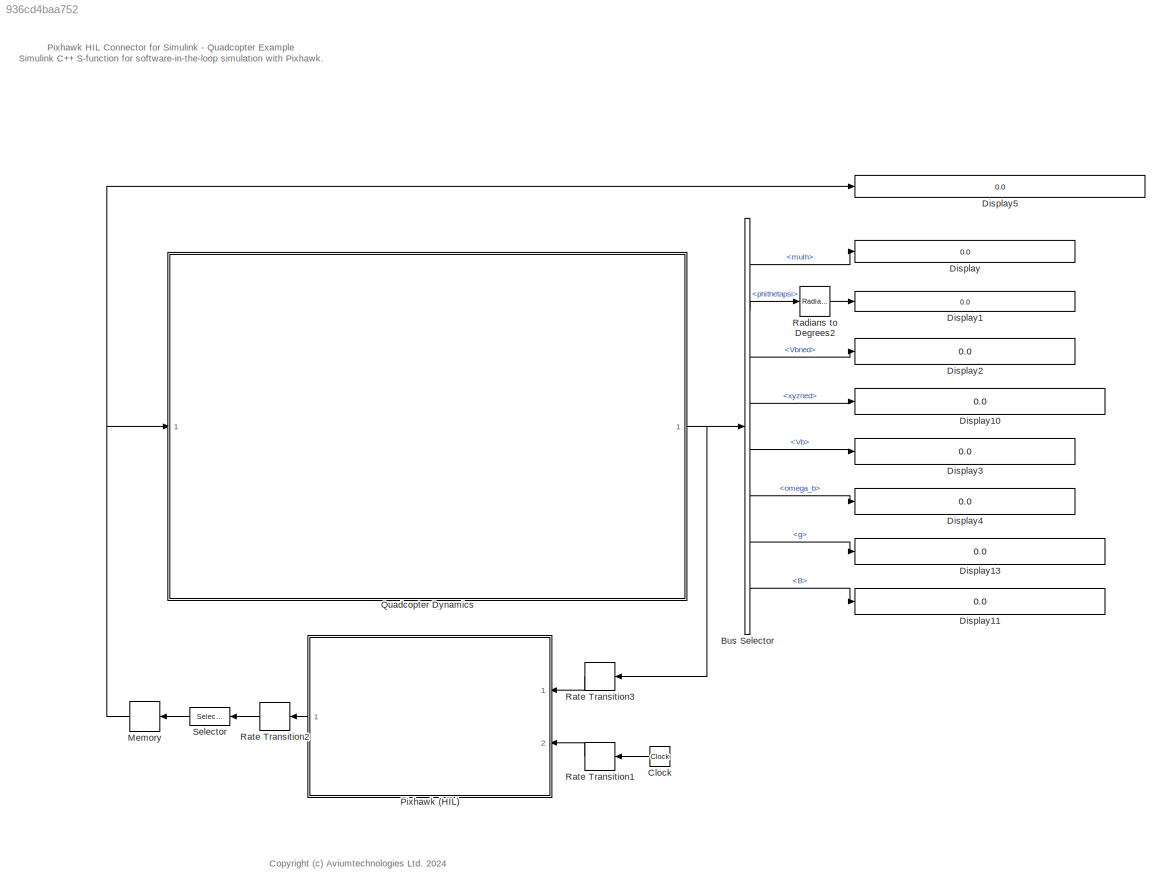
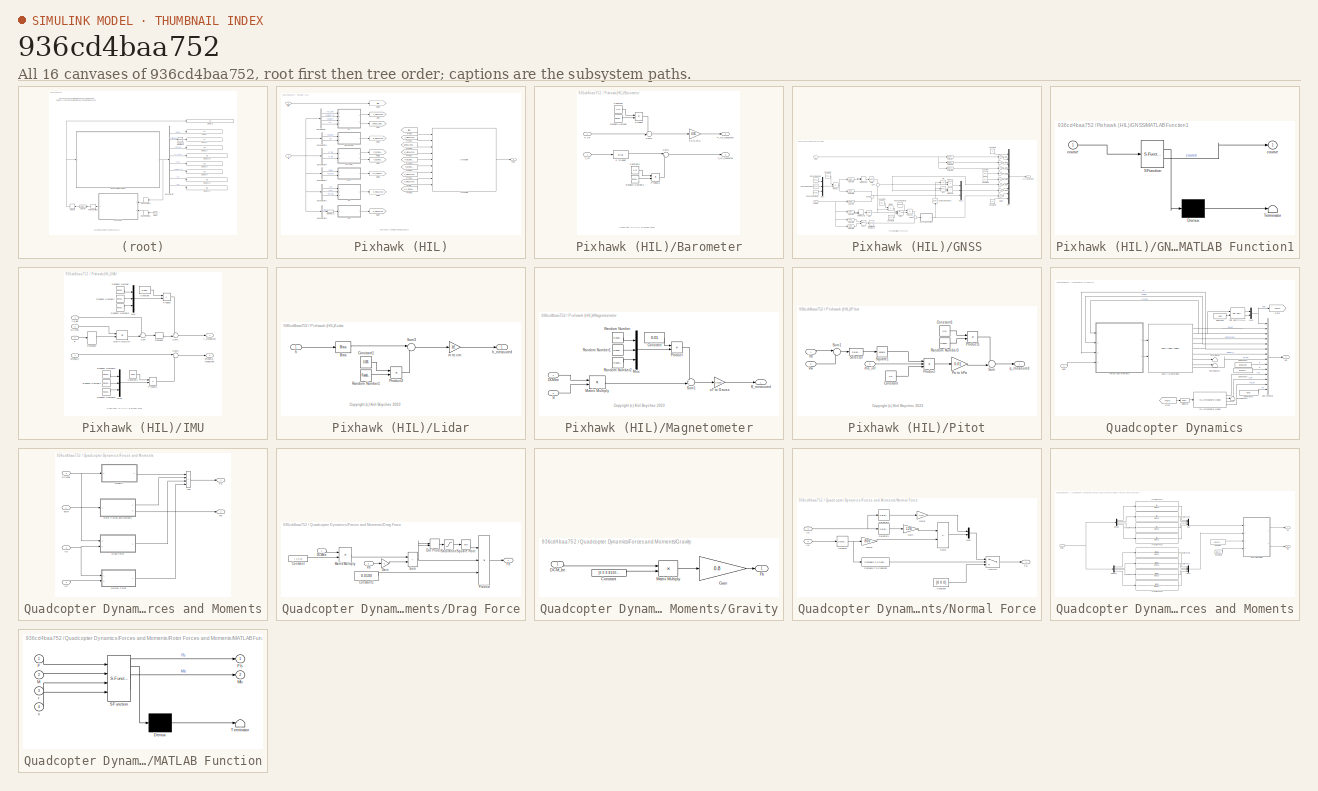
[diagram: thumbnail index - all 16 canvases of the model, root first then tree order]
MODEL slx_936cd4baa752
KIND model
CONFIG AbsTol = auto
CONFIG EnableMultiTasking = off
CONFIG FixedStep = 0.004
CONFIG MaxStep = auto
CONFIG MinStep = auto
CONFIG RelTol = 1e-3
CONFIG SampleTimeConstraint = Unconstrained
CONFIG SolverName = ode4
CONFIG StartTime = 0.0
CONFIG StopTime = inf
WORKSPACE source: mxarray member
WORKSPACE sample_time = 0.004
BLOCK [BusSelector] Bus Selector
  OutputSignals = mulh,phithetapsi,Vbned,xyzned,Vb,omega_b,g,B
  Ports = [1, 8]
BLOCK [Clock] Clock
  NameLocation = top
BLOCK [Display] Display
  Decimation = 1
  Ports = [1]
BLOCK [Display] Display1
  Decimation = 1
  Ports = [1]
BLOCK [Display] Display10
  Decimation = 1
  Ports = [1]
BLOCK [Display] Display11
  Decimation = 1
  Ports = [1]
BLOCK [Display] Display13
  Decimation = 1
  Ports = [1]
BLOCK [Display] Display2
  Decimation = 1
  Ports = [1]
BLOCK [Display] Display3
  Decimation = 1
  Ports = [1]
BLOCK [Display] Display4
  Decimation = 1
  Ports = [1]
BLOCK [Display] Display5
  Decimation = 1
  Ports = [1]
BLOCK [Memory] Memory
  InitialCondition = [0 0 0 0]
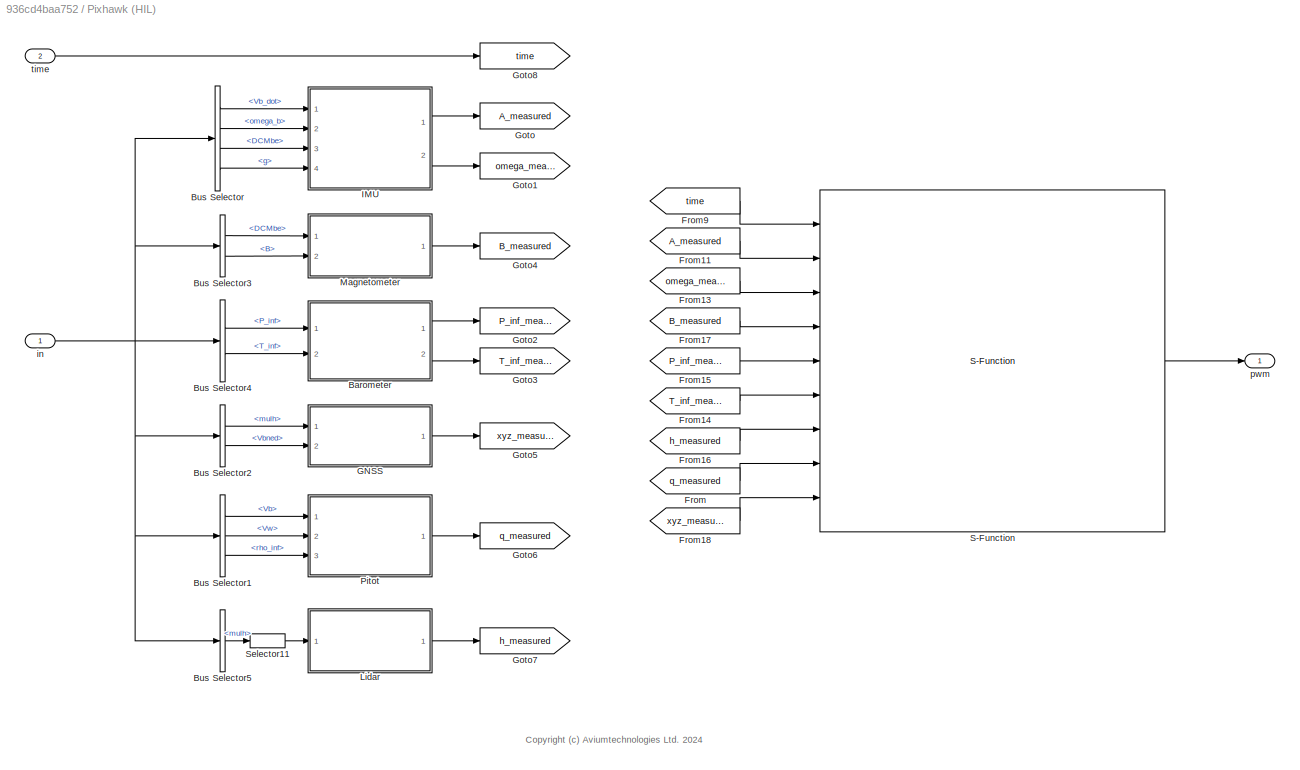
BLOCK [SubSystem] Pixhawk (HIL)
  Ports = [2, 1]
  RequestExecContextInheritance = off
BLOCK [SubSystem] Pixhawk (HIL)/Barometer
  Ports = [2, 2]
  RequestExecContextInheritance = off
BLOCK [Constant] Pixhawk (HIL)/Barometer/Constant
  Value = 0.04
BLOCK [Constant] Pixhawk (HIL)/Barometer/Constant1
  Value = 0.01
BLOCK [Bias] Pixhawk (HIL)/Barometer/K to degC
  Bias = -273.15
  SaturateOnIntegerOverflow = off
BLOCK [Inport] Pixhawk (HIL)/Barometer/P_inf
BLOCK [Outport] Pixhawk (HIL)/Barometer/P_inf_measured
BLOCK [Gain] Pixhawk (HIL)/Barometer/Pa to hPa
  Gain = 0.01
BLOCK [Product] Pixhawk (HIL)/Barometer/Product
  Ports = [2, 1]
BLOCK [Product] Pixhawk (HIL)/Barometer/Product1
  Ports = [2, 1]
BLOCK [RandomNumber] Pixhawk (HIL)/Barometer/Random Number
  SampleTime = sample_time
  Seed = 9
BLOCK [RandomNumber] Pixhawk (HIL)/Barometer/Random Number3
  SampleTime = sample_time
  Seed = 10
BLOCK [Sum] Pixhawk (HIL)/Barometer/Sum1
  Inputs = ++|
  Ports = [2, 1]
BLOCK [Sum] Pixhawk (HIL)/Barometer/Sum2
  Inputs = |++
  Ports = [2, 1]
BLOCK [Inport] Pixhawk (HIL)/Barometer/T_inf
  Port = 2
BLOCK [Outport] Pixhawk (HIL)/Barometer/T_inf_measured
  Port = 2
BLOCK [BusSelector] Pixhawk (HIL)/Bus Selector
  OutputSignals = Vb_dot,omega_b,DCMbe,g
  Ports = [1, 4]
BLOCK [BusSelector] Pixhawk (HIL)/Bus Selector1
  OutputSignals = Vb,Vw,rho_inf
  Ports = [1, 3]
BLOCK [BusSelector] Pixhawk (HIL)/Bus Selector2
  OutputSignals = mulh,Vbned
  Ports = [1, 2]
BLOCK [BusSelector] Pixhawk (HIL)/Bus Selector3
  OutputSignals = DCMbe,B
  Ports = [1, 2]
BLOCK [BusSelector] Pixhawk (HIL)/Bus Selector4
  OutputSignals = P_inf,T_inf
  Ports = [1, 2]
BLOCK [BusSelector] Pixhawk (HIL)/Bus Selector5
  OutputSignals = mulh
  Ports = [1, 1]
BLOCK [From] Pixhawk (HIL)/From
  GotoTag = q_measured
BLOCK [From] Pixhawk (HIL)/From11
  GotoTag = A_measured
BLOCK [From] Pixhawk (HIL)/From13
  GotoTag = omega_measured
BLOCK [From] Pixhawk (HIL)/From14
  GotoTag = T_inf_measured
BLOCK [From] Pixhawk (HIL)/From15
  GotoTag = P_inf_measured
BLOCK [From] Pixhawk (HIL)/From16
  GotoTag = h_measured
BLOCK [From] Pixhawk (HIL)/From17
  GotoTag = B_measured
BLOCK [From] Pixhawk (HIL)/From18
  GotoTag = xyz_measured
BLOCK [From] Pixhawk (HIL)/From9
  GotoTag = time
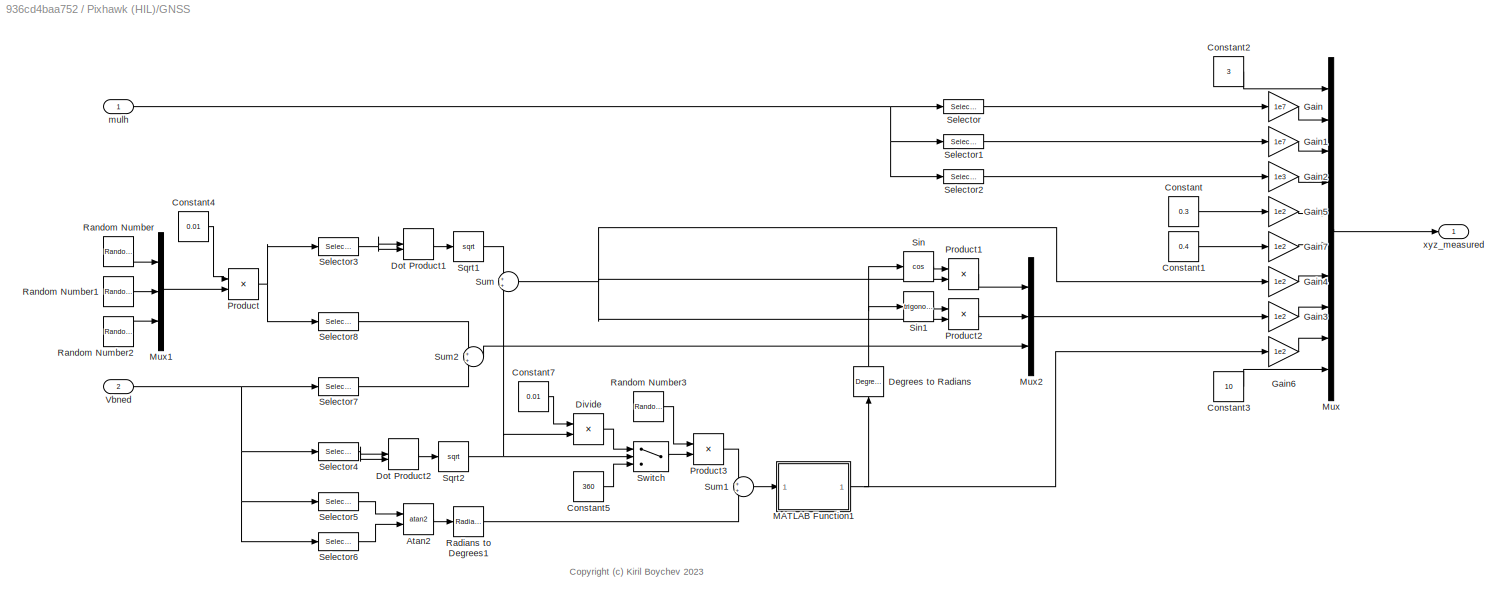
BLOCK [SubSystem] Pixhawk (HIL)/GNSS
  Ports = [2, 1]
  RequestExecContextInheritance = off
BLOCK [Trigonometry] Pixhawk (HIL)/GNSS/Atan2
  Operator = atan2
  Ports = [2, 1]
BLOCK [Constant] Pixhawk (HIL)/GNSS/Constant
  Value = 0.3
BLOCK [Constant] Pixhawk (HIL)/GNSS/Constant1
  Value = 0.4
BLOCK [Constant] Pixhawk (HIL)/GNSS/Constant2
  Value = 3
BLOCK [Constant] Pixhawk (HIL)/GNSS/Constant3
  Value = 10
BLOCK [Constant] Pixhawk (HIL)/GNSS/Constant4
  Value = 0.01
BLOCK [Constant] Pixhawk (HIL)/GNSS/Constant5
  Value = 360
BLOCK [Constant] Pixhawk (HIL)/GNSS/Constant7
  Value = 0.01
BLOCK [Reference] Pixhawk (HIL)/GNSS/Degrees to Radians  REF=simulink_extras/Transformations/Degrees to
Radians
  NameLocation = right
  Ports = [1, 1]
  SourceBlock = simulink_extras/Transformations/Degrees to\nRadians
  SourceProductBaseCode = SL
  SourceType = DegreesToRadians
BLOCK [Product] Pixhawk (HIL)/GNSS/Divide
  Inputs = */
  Ports = [2, 1]
BLOCK [DotProduct] Pixhawk (HIL)/GNSS/Dot Product1
  OutDataTypeStr = Inherit: Inherit via internal rule
BLOCK [DotProduct] Pixhawk (HIL)/GNSS/Dot Product2
  OutDataTypeStr = Inherit: Inherit via internal rule
BLOCK [Gain] Pixhawk (HIL)/GNSS/Gain
  Gain = 1e7
BLOCK [Gain] Pixhawk (HIL)/GNSS/Gain1
  Gain = 1e7
BLOCK [Gain] Pixhawk (HIL)/GNSS/Gain2
  Gain = 1e3
BLOCK [Gain] Pixhawk (HIL)/GNSS/Gain3
  Gain = 1e2
BLOCK [Gain] Pixhawk (HIL)/GNSS/Gain4
  Gain = 1e2
BLOCK [Gain] Pixhawk (HIL)/GNSS/Gain5
  Gain = 1e2
BLOCK [Gain] Pixhawk (HIL)/GNSS/Gain6
  Gain = 1e2
BLOCK [Gain] Pixhawk (HIL)/GNSS/Gain7
  Gain = 1e2
BLOCK [SubSystem] Pixhawk (HIL)/GNSS/MATLAB Function1
  ErrorFcn = Stateflow.Translate.translate
  PermitHierarchicalResolution = ExplicitOnly
  Ports = [1, 1]
  RequestExecContextInheritance = off
  SFBlockType = MATLAB Function
  TreatAsAtomicUnit = on
BLOCK [Demux] Pixhawk (HIL)/GNSS/MATLAB Function1/ Demux 
  Outputs = 1
  Ports = [1, 1]
BLOCK [S-Function] Pixhawk (HIL)/GNSS/MATLAB Function1/ SFunction 
  EnableBusSupport = on
  FunctionName = sf_sfun
  PortCounts = [1 2]
  Ports = [1, 2]
  SFcnIsStateOwnerBlock = off
  SFunctionDeploymentMode = off
  Tag = Stateflow S-Function 7
BLOCK [Terminator] Pixhawk (HIL)/GNSS/MATLAB Function1/ Terminator 
BLOCK [Outport] Pixhawk (HIL)/GNSS/MATLAB Function1/course
BLOCK [Inport] Pixhawk (HIL)/GNSS/MATLAB Function1/course 
BLOCK [Mux] Pixhawk (HIL)/GNSS/Mux
  DisplayOption = bar
  Inputs = 10
  Ports = [10, 1]
BLOCK [Mux] Pixhawk (HIL)/GNSS/Mux1
  DisplayOption = bar
  Inputs = 3
  Ports = [3, 1]
BLOCK [Mux] Pixhawk (HIL)/GNSS/Mux2
  DisplayOption = bar
  Inputs = 3
  Ports = [3, 1]
BLOCK [Product] Pixhawk (HIL)/GNSS/Product
  Ports = [2, 1]
BLOCK [Product] Pixhawk (HIL)/GNSS/Product1
  Ports = [2, 1]
BLOCK [Product] Pixhawk (HIL)/GNSS/Product2
  Ports = [2, 1]
BLOCK [Product] Pixhawk (HIL)/GNSS/Product3
  Ports = [2, 1]
BLOCK [Reference] Pixhawk (HIL)/GNSS/Radians to Degrees1  REF=simulink_extras/Transformations/Radians
to Degrees
  Ports = [1, 1]
  SourceBlock = simulink_extras/Transformations/Radians\nto Degrees
  SourceProductBaseCode = SL
  SourceType = RadiansToDegrees
BLOCK [RandomNumber] Pixhawk (HIL)/GNSS/Random Number
  SampleTime = sample_time
  Seed = 11
BLOCK [RandomNumber] Pixhawk (HIL)/GNSS/Random Number1
  SampleTime = sample_time
  Seed = 12
BLOCK [RandomNumber] Pixhawk (HIL)/GNSS/Random Number2
  SampleTime = sample_time
  Seed = 13
BLOCK [RandomNumber] Pixhawk (HIL)/GNSS/Random Number3
  SampleTime = sample_time
  Seed = 14
BLOCK [Selector] Pixhawk (HIL)/GNSS/Selector
  IndexMode = Zero-based
  IndexOptions = Index vector (dialog)
  Indices = 0
  InputPortWidth = 3
  OutputSizes = 1
  Ports = [1, 1]
BLOCK [Selector] Pixhawk (HIL)/GNSS/Selector1
  IndexMode = Zero-based
  IndexOptions = Index vector (dialog)
  Indices = 1
  InputPortWidth = 3
  OutputSizes = 1
  Ports = [1, 1]
BLOCK [Selector] Pixhawk (HIL)/GNSS/Selector2
  IndexMode = Zero-based
  IndexOptions = Index vector (dialog)
  Indices = 2
  InputPortWidth = 3
  OutputSizes = 1
  Ports = [1, 1]
BLOCK [Selector] Pixhawk (HIL)/GNSS/Selector3
  IndexMode = Zero-based
  IndexOptions = Index vector (dialog)
  Indices = [0 1]
  InputPortWidth = 3
  OutputSizes = 1
  Ports = [1, 1]
BLOCK [Selector] Pixhawk (HIL)/GNSS/Selector4
  IndexMode = Zero-based
  IndexOptions = Index vector (dialog)
  Indices = [0 1]
  InputPortWidth = 3
  OutputSizes = 1
  Ports = [1, 1]
BLOCK [Selector] Pixhawk (HIL)/GNSS/Selector5
  IndexMode = Zero-based
  IndexOptions = Index vector (dialog)
  Indices = 1
  InputPortWidth = 3
  OutputSizes = 1
  Ports = [1, 1]
BLOCK [Selector] Pixhawk (HIL)/GNSS/Selector6
  IndexMode = Zero-based
  IndexOptions = Index vector (dialog)
  Indices = 0
  InputPortWidth = 3
  OutputSizes = 1
  Ports = [1, 1]
BLOCK [Selector] Pixhawk (HIL)/GNSS/Selector7
  IndexMode = Zero-based
  IndexOptions = Index vector (dialog)
  Indices = 2
  InputPortWidth = 3
  OutputSizes = 1
  Ports = [1, 1]
BLOCK [Selector] Pixhawk (HIL)/GNSS/Selector8
  IndexMode = Zero-based
  IndexOptions = Index vector (dialog)
  Indices = 2
  InputPortWidth = 3
  OutputSizes = 1
  Ports = [1, 1]
BLOCK [Trigonometry] Pixhawk (HIL)/GNSS/Sin
  Operator = cos
  Ports = [1, 1]
BLOCK [Trigonometry] Pixhawk (HIL)/GNSS/Sin1
  Ports = [1, 1]
BLOCK [Sqrt] Pixhawk (HIL)/GNSS/Sqrt1
BLOCK [Sqrt] Pixhawk (HIL)/GNSS/Sqrt2
BLOCK [Sum] Pixhawk (HIL)/GNSS/Sum
  NameLocation = top
  Ports = [2, 1]
BLOCK [Sum] Pixhawk (HIL)/GNSS/Sum1
  Ports = [2, 1]
BLOCK [Sum] Pixhawk (HIL)/GNSS/Sum2
  Ports = [2, 1]
BLOCK [Switch] Pixhawk (HIL)/GNSS/Switch
  Criteria = u2 > Threshold
  InputSameDT = off
  SaturateOnIntegerOverflow = off
BLOCK [Inport] Pixhawk (HIL)/GNSS/Vbned
  Port = 2
BLOCK [Inport] Pixhawk (HIL)/GNSS/mulh
BLOCK [Outport] Pixhawk (HIL)/GNSS/xyz_measured
BLOCK [Goto] Pixhawk (HIL)/Goto
  GotoTag = A_measured
BLOCK [Goto] Pixhawk (HIL)/Goto1
  GotoTag = omega_measured
BLOCK [Goto] Pixhawk (HIL)/Goto2
  GotoTag = P_inf_measured
BLOCK [Goto] Pixhawk (HIL)/Goto3
  GotoTag = T_inf_measured
BLOCK [Goto] Pixhawk (HIL)/Goto4
  GotoTag = B_measured
BLOCK [Goto] Pixhawk (HIL)/Goto5
  GotoTag = xyz_measured
BLOCK [Goto] Pixhawk (HIL)/Goto6
  GotoTag = q_measured
BLOCK [Goto] Pixhawk (HIL)/Goto7
  GotoTag = h_measured
BLOCK [Goto] Pixhawk (HIL)/Goto8
  GotoTag = time
BLOCK [SubSystem] Pixhawk (HIL)/IMU
  Ports = [4, 2]
  RequestExecContextInheritance = off
BLOCK [Outport] Pixhawk (HIL)/IMU/A_measured
BLOCK [Constant] Pixhawk (HIL)/IMU/Constant
  Value = 0.004
BLOCK [Constant] Pixhawk (HIL)/IMU/Constant1
  Value = 0.002
BLOCK [Inport] Pixhawk (HIL)/IMU/DCMbe
  Port = 3
BLOCK [Product] Pixhawk (HIL)/IMU/Matrix Multiply
  Multiplication = Matrix(*)
  Ports = [2, 1]
BLOCK [Mux] Pixhawk (HIL)/IMU/Mux
  DisplayOption = bar
  Inputs = 3
  Ports = [3, 1]
BLOCK [Mux] Pixhawk (HIL)/IMU/Mux1
  DisplayOption = bar
  Inputs = 3
  Ports = [3, 1]
BLOCK [Product] Pixhawk (HIL)/IMU/Product
  Ports = [2, 1]
BLOCK [Product] Pixhawk (HIL)/IMU/Product1
  Ports = [2, 1]
BLOCK [RandomNumber] Pixhawk (HIL)/IMU/Random Number
  SampleTime = sample_time
BLOCK [RandomNumber] Pixhawk (HIL)/IMU/Random Number1
  SampleTime = sample_time
  Seed = 1
BLOCK [RandomNumber] Pixhawk (HIL)/IMU/Random Number2
  SampleTime = sample_time
  Seed = 2
BLOCK [RandomNumber] Pixhawk (HIL)/IMU/Random Number3
  SampleTime = sample_time
  Seed = 3
BLOCK [RandomNumber] Pixhawk (HIL)/IMU/Random Number4
  SampleTime = sample_time
  Seed = 4
BLOCK [RandomNumber] Pixhawk (HIL)/IMU/Random Number5
  SampleTime = sample_time
  Seed = 5
BLOCK [Reshape] Pixhawk (HIL)/IMU/Reshape
  Ports = [1, 1]
BLOCK [Reshape] Pixhawk (HIL)/IMU/Reshape1
  OutputDimensionality = Column vector (2-D)
  Ports = [1, 1]
BLOCK [Sum] Pixhawk (HIL)/IMU/Sum
  Inputs = +-|
  Ports = [2, 1]
BLOCK [Sum] Pixhawk (HIL)/IMU/Sum1
  Inputs = ++|
  Ports = [2, 1]
BLOCK [Sum] Pixhawk (HIL)/IMU/Sum2
  Inputs = |++
  Ports = [2, 1]
BLOCK [Inport] Pixhawk (HIL)/IMU/Vb_dot
BLOCK [Inport] Pixhawk (HIL)/IMU/g
  Port = 4
BLOCK [Inport] Pixhawk (HIL)/IMU/omega_b
  Port = 2
BLOCK [Outport] Pixhawk (HIL)/IMU/omega_b_measured
  Port = 2
BLOCK [SubSystem] Pixhawk (HIL)/Lidar
  Ports = [1, 1]
  RequestExecContextInheritance = off
BLOCK [Bias] Pixhawk (HIL)/Lidar/Bias
  Bias = -488
  SaturateOnIntegerOverflow = off
BLOCK [Constant] Pixhawk (HIL)/Lidar/Constant1
  Value = 0.005
BLOCK [Product] Pixhawk (HIL)/Lidar/Product2
  Ports = [2, 1]
BLOCK [RandomNumber] Pixhawk (HIL)/Lidar/Random Number1
  SampleTime = sample_time
  Seed = 16
BLOCK [Sum] Pixhawk (HIL)/Lidar/Sum3
  Inputs = |++
  Ports = [2, 1]
BLOCK [Inport] Pixhawk (HIL)/Lidar/h
BLOCK [Outport] Pixhawk (HIL)/Lidar/h_measured
BLOCK [Gain] Pixhawk (HIL)/Lidar/m to cm
  Gain = 1e2
BLOCK [SubSystem] Pixhawk (HIL)/Magnetometer
  Ports = [2, 1]
  RequestExecContextInheritance = off
BLOCK [Inport] Pixhawk (HIL)/Magnetometer/B
  Port = 2
BLOCK [Outport] Pixhawk (HIL)/Magnetometer/B_measured
BLOCK [Constant] Pixhawk (HIL)/Magnetometer/Constant
  Value = 0.01
BLOCK [Inport] Pixhawk (HIL)/Magnetometer/DCMbe
BLOCK [Product] Pixhawk (HIL)/Magnetometer/Matrix Multiply
  Multiplication = Matrix(*)
  Ports = [2, 1]
BLOCK [Mux] Pixhawk (HIL)/Magnetometer/Mux
  DisplayOption = bar
  Inputs = 3
  Ports = [3, 1]
BLOCK [Product] Pixhawk (HIL)/Magnetometer/Product
  Ports = [2, 1]
BLOCK [RandomNumber] Pixhawk (HIL)/Magnetometer/Random Number
  SampleTime = sample_time
  Seed = 6
BLOCK [RandomNumber] Pixhawk (HIL)/Magnetometer/Random Number1
  SampleTime = sample_time
  Seed = 7
BLOCK [RandomNumber] Pixhawk (HIL)/Magnetometer/Random Number2
  SampleTime = sample_time
  Seed = 8
BLOCK [Sum] Pixhawk (HIL)/Magnetometer/Sum1
  Inputs = ++|
  Ports = [2, 1]
BLOCK [Gain] Pixhawk (HIL)/Magnetometer/uT to Gauss
  Gain = 0.0100
BLOCK [SubSystem] Pixhawk (HIL)/Pitot
  Ports = [3, 1]
  RequestExecContextInheritance = off
BLOCK [Constant] Pixhawk (HIL)/Pitot/Constant
  Value = 0.5
BLOCK [Constant] Pixhawk (HIL)/Pitot/Constant1
  Value = 0.01
BLOCK [Gain] Pixhawk (HIL)/Pitot/Pa to hPa
  Gain = 0.01
BLOCK [Product] Pixhawk (HIL)/Pitot/Product
  Inputs = 3
  Ports = [3, 1]
BLOCK [Product] Pixhawk (HIL)/Pitot/Product1
  Ports = [2, 1]
BLOCK [RandomNumber] Pixhawk (HIL)/Pitot/Random Number3
  SampleTime = sample_time
  Seed = 15
BLOCK [Selector] Pixhawk (HIL)/Pitot/Selector
  IndexMode = Zero-based
  IndexOptions = Index vector (dialog)
  Indices = 0
  InputPortWidth = 3
  OutputSizes = 1
  Ports = [1, 1]
BLOCK [Math] Pixhawk (HIL)/Pitot/Square1
  Operator = square
  Ports = [1, 1]
BLOCK [Sum] Pixhawk (HIL)/Pitot/Sum
  Inputs = ++|
  Ports = [2, 1]
BLOCK [Sum] Pixhawk (HIL)/Pitot/Sum1
  Inputs = |+-
  Ports = [2, 1]
BLOCK [Inport] Pixhawk (HIL)/Pitot/Vb
BLOCK [Inport] Pixhawk (HIL)/Pitot/Vw
  Port = 2
BLOCK [Outport] Pixhawk (HIL)/Pitot/q_measured
BLOCK [Inport] Pixhawk (HIL)/Pitot/rho_inf
  Port = 3
BLOCK [S-Function] Pixhawk (HIL)/S-Function
  EnableBusSupport = off
  FunctionName = pixhawk_hil_connector
  Parameters = serial_port,destination_address,destination_port
  Ports = [9, 1]
  SFcnIsStateOwnerBlock = off
  SFunctionDeploymentMode = off
BLOCK [Selector] Pixhawk (HIL)/Selector11
  IndexMode = Zero-based
  IndexOptions = Index vector (dialog)
  Indices = 2
  InputPortWidth = 3
  OutputSizes = 1
  Ports = [1, 1]
BLOCK [Inport] Pixhawk (HIL)/in
BLOCK [Outport] Pixhawk (HIL)/pwm
BLOCK [Inport] Pixhawk (HIL)/time
  Port = 2
BLOCK [SubSystem] Quadcopter Dynamics
  Ports = [1, 1]
  RequestExecContextInheritance = off
BLOCK [Reference] Quadcopter Dynamics/6DOF (Quaternion)  REF=shared6dof/6DOF (Euler Angles)
  Ports = [2, 9]
  SourceBlock = shared6dof/6DOF (Euler Angles)
  SourceProductBaseCode = AE,PW,DR,MT,VE
  SourceType = 6DOF EoM (Body Axis)
BLOCK [BusCreator] Quadcopter Dynamics/Bus Creator
  DisplayOption = bar
  InheritFromInputs = on
  Inputs = 14
  Ports = [14, 1]
BLOCK [Constant] Quadcopter Dynamics/Constant
  Value = -488
BLOCK [Constant] Quadcopter Dynamics/Constant1
  Value = [0 0 9.8100]
BLOCK [Constant] Quadcopter Dynamics/Constant2
  Value = [21.5 1.16 43.1]
BLOCK [Constant] Quadcopter Dynamics/Constant3
  Value = [0 0 0]
BLOCK [Reference] Quadcopter Dynamics/Flat Earth to LLA  REF=aerolibtransform2/Flat Earth to LLA
  Ports = [2, 2]
  SourceBlock = aerolibtransform2/Flat Earth to LLA
  SourceProductBaseCode = AE
  SourceType = Flat Earth to LLA
BLOCK [SubSystem] Quadcopter Dynamics/Forces and Moments
  Ports = [4, 2]
  RequestExecContextInheritance = off
BLOCK [Sum] Quadcopter Dynamics/Forces and Moments/Add
  IconShape = rectangular
  Inputs = ++++
  Ports = [4, 1]
BLOCK [Inport] Quadcopter Dynamics/Forces and Moments/DCMbe
  Port = 2
BLOCK [SubSystem] Quadcopter Dynamics/Forces and Moments/Drag Force
  Ports = [2, 1]
  RequestExecContextInheritance = off
BLOCK [Constant] Quadcopter Dynamics/Forces and Moments/Drag Force/Constant
  Value = [ 0 0 0]
BLOCK [Constant] Quadcopter Dynamics/Forces and Moments/Drag Force/Constant1
  Value = 0.0100
BLOCK [Inport] Quadcopter Dynamics/Forces and Moments/Drag Force/DCMbe
BLOCK [DotProduct] Quadcopter Dynamics/Forces and Moments/Drag Force/Dot Product
  OutDataTypeStr = Inherit: Inherit via internal rule
BLOCK [Outport] Quadcopter Dynamics/Forces and Moments/Drag Force/Fb
BLOCK [Gain] Quadcopter Dynamics/Forces and Moments/Drag Force/Gain
  Gain = -1
BLOCK [Product] Quadcopter Dynamics/Forces and Moments/Drag Force/Matrix Multiply
  Multiplication = Matrix(*)
  Ports = [2, 1]
BLOCK [Product] Quadcopter Dynamics/Forces and Moments/Drag Force/Product
  Inputs = 3
  Ports = [3, 1]
BLOCK [Saturate] Quadcopter Dynamics/Forces and Moments/Drag Force/Saturation
  LowerLimit = 0.0001
  UpperLimit = inf
BLOCK [Sqrt] Quadcopter Dynamics/Forces and Moments/Drag Force/Square Root
BLOCK [Sum] Quadcopter Dynamics/Forces and Moments/Drag Force/Sum
  IconShape = rectangular
  Ports = [2, 1]
BLOCK [Inport] Quadcopter Dynamics/Forces and Moments/Drag Force/Vb
  Port = 2
BLOCK [Outport] Quadcopter Dynamics/Forces and Moments/Fb
BLOCK [SubSystem] Quadcopter Dynamics/Forces and Moments/Gravity
  Ports = [1, 1]
  RequestExecContextInheritance = off
BLOCK [Constant] Quadcopter Dynamics/Forces and Moments/Gravity/Constant
  Value = [0 0 9.8100]'
BLOCK [Inport] Quadcopter Dynamics/Forces and Moments/Gravity/DCM_be
BLOCK [Outport] Quadcopter Dynamics/Forces and Moments/Gravity/Fb
BLOCK [Gain] Quadcopter Dynamics/Forces and Moments/Gravity/Gain
  Gain = 0.8
BLOCK [Product] Quadcopter Dynamics/Forces and Moments/Gravity/Matrix Multiply
  Multiplication = Matrix(*)
  Ports = [2, 1]
BLOCK [Outport] Quadcopter Dynamics/Forces and Moments/Mb
  Port = 2
BLOCK [SubSystem] Quadcopter Dynamics/Forces and Moments/Normal Force
  Ports = [2, 1]
  RequestExecContextInheritance = off
BLOCK [Reference] Quadcopter Dynamics/Forces and Moments/Normal Force/Compare To Constant  REF=simulink/Logic and Bit
Operations/Compare
To Constant
  Ports = [1, 1]
  SourceBlock = simulink/Logic and Bit\nOperations/Compare\nTo Constant
  SourceProductBaseCode = SL
  SourceType = Compare To Constant
BLOCK [Constant] Quadcopter Dynamics/Forces and Moments/Normal Force/Constant
  SampleTime = -1
  Value = [0 0 0]
BLOCK [Outport] Quadcopter Dynamics/Forces and Moments/Normal Force/Fb
BLOCK [Gain] Quadcopter Dynamics/Forces and Moments/Normal Force/Gain
  Gain = 128
  OutDataTypeStr = Inherit: Same as input
  ParamDataTypeStr = Inherit: Same as input
  SaturateOnIntegerOverflow = on
BLOCK [Gain] Quadcopter Dynamics/Forces and Moments/Normal Force/Gain1
  Gain = -0.01
BLOCK [Gain] Quadcopter Dynamics/Forces and Moments/Normal Force/Gain2
  Gain = 800
  OutDataTypeStr = Inherit: Same as input
  ParamDataTypeStr = Inherit: Same as input
  SaturateOnIntegerOverflow = on
BLOCK [Mux] Quadcopter Dynamics/Forces and Moments/Normal Force/Mux
  DisplayOption = bar
  Inputs = 2
  Ports = [2, 1]
BLOCK [Selector] Quadcopter Dynamics/Forces and Moments/Normal Force/Selector
  IndexOptions = Index vector (dialog)
  Indices = [3]
  InputPortWidth = 3
  OutputSizes = 1
  Ports = [1, 1]
BLOCK [Selector] Quadcopter Dynamics/Forces and Moments/Normal Force/Selector1
  IndexOptions = Index vector (dialog)
  Indices = [3]
  InputPortWidth = 3
  OutputSizes = 1
  Ports = [1, 1]
BLOCK [Selector] Quadcopter Dynamics/Forces and Moments/Normal Force/Selector2
  IndexOptions = Index vector (dialog)
  Indices = [1 2]
  InputPortWidth = 3
  OutputSizes = 1
  Ports = [1, 1]
BLOCK [Sum] Quadcopter Dynamics/Forces and Moments/Normal Force/Sum2
  IconShape = rectangular
  InputSameDT = on
  Inputs = --
  OutDataTypeStr = Inherit: Same as first input
  Ports = [2, 1]
  SaturateOnIntegerOverflow = on
BLOCK [Switch] Quadcopter Dynamics/Forces and Moments/Normal Force/Switch
  Criteria = u2 > Threshold
  InputSameDT = off
  SaturateOnIntegerOverflow = off
BLOCK [Inport] Quadcopter Dynamics/Forces and Moments/Normal Force/Vb
BLOCK [Inport] Quadcopter Dynamics/Forces and Moments/Normal Force/Xe
  Port = 2
BLOCK [SubSystem] Quadcopter Dynamics/Forces and Moments/Rotor Forces and Moments
  Ports = [1, 2]
  RequestExecContextInheritance = off
BLOCK [Constant] Quadcopter Dynamics/Forces and Moments/Rotor Forces and Moments/Constant
  Value = [    0.1167   -0.1167    0.1167   -0.1167;\n    0.1167   -0.1167   -0.1167    0.1167;\n         0         0         0         0]
BLOCK [Constant] Quadcopter Dynamics/Forces and Moments/Rotor Forces and Moments/Constant1
  Value = [-1 -1 1 1]
BLOCK [Demux] Quadcopter Dynamics/Forces and Moments/Rotor Forces and Moments/Demux
  Ports = [1, 4]
BLOCK [Demux] Quadcopter Dynamics/Forces and Moments/Rotor Forces and Moments/Demux1
  Ports = [1, 4]
BLOCK [Outport] Quadcopter Dynamics/Forces and Moments/Rotor Forces and Moments/Fb
BLOCK [SubSystem] Quadcopter Dynamics/Forces and Moments/Rotor Forces and Moments/MATLAB Function
  ErrorFcn = Stateflow.Translate.translate
  PermitHierarchicalResolution = ExplicitOnly
  Ports = [4, 2]
  RequestExecContextInheritance = off
  SFBlockType = MATLAB Function
  TreatAsAtomicUnit = on
BLOCK [Demux] Quadcopter Dynamics/Forces and Moments/Rotor Forces and Moments/MATLAB Function/ Demux 
  Outputs = 1
  Ports = [1, 1]
BLOCK [S-Function] Quadcopter Dynamics/Forces and Moments/Rotor Forces and Moments/MATLAB Function/ SFunction 
  EnableBusSupport = on
  FunctionName = sf_sfun
  PortCounts = [4 3]
  Ports = [4, 3]
  SFcnIsStateOwnerBlock = off
  SFunctionDeploymentMode = off
  Tag = Stateflow S-Function 1
BLOCK [Terminator] Quadcopter Dynamics/Forces and Moments/Rotor Forces and Moments/MATLAB Function/ Terminator 
BLOCK [Inport] Quadcopter Dynamics/Forces and Moments/Rotor Forces and Moments/MATLAB Function/F
BLOCK [Outport] Quadcopter Dynamics/Forces and Moments/Rotor Forces and Moments/MATLAB Function/Fb
  VectorParamsAs1DForOutWhenUnconnected = off
BLOCK [Inport] Quadcopter Dynamics/Forces and Moments/Rotor Forces and Moments/MATLAB Function/M
  Port = 2
BLOCK [Outport] Quadcopter Dynamics/Forces and Moments/Rotor Forces and Moments/MATLAB Function/Mb
  Port = 2
BLOCK [Inport] Quadcopter Dynamics/Forces and Moments/Rotor Forces and Moments/MATLAB Function/c
  Port = 4
BLOCK [Inport] Quadcopter Dynamics/Forces and Moments/Rotor Forces and Moments/MATLAB Function/r
  Port = 3
BLOCK [Outport] Quadcopter Dynamics/Forces and Moments/Rotor Forces and Moments/Mb
  Port = 2
BLOCK [Mux] Quadcopter Dynamics/Forces and Moments/Rotor Forces and Moments/Mux
  DisplayOption = bar
  Ports = [4, 1]
BLOCK [Mux] Quadcopter Dynamics/Forces and Moments/Rotor Forces and Moments/Mux1
  DisplayOption = bar
  Ports = [4, 1]
BLOCK [TransferFcn] Quadcopter Dynamics/Forces and Moments/Rotor Forces and Moments/Transfer Fcn1
  Denominator = [0.05 1]
  Numerator = [4]
BLOCK [TransferFcn] Quadcopter Dynamics/Forces and Moments/Rotor Forces and Moments/Transfer Fcn2
  Denominator = [0.05 1]
  Numerator = [4]
BLOCK [TransferFcn] Quadcopter Dynamics/Forces and Moments/Rotor Forces and Moments/Transfer Fcn3
  Denominator = [0.05 1]
  Numerator = [4]
BLOCK [TransferFcn] Quadcopter Dynamics/Forces and Moments/Rotor Forces and Moments/Transfer Fcn4
  Denominator = [0.05 1]
  Numerator = [4]
BLOCK [TransferFcn] Quadcopter Dynamics/Forces and Moments/Rotor Forces and Moments/Transfer Fcn5
  Denominator = [0.05 1]
  Numerator = [0.05]
BLOCK [TransferFcn] Quadcopter Dynamics/Forces and Moments/Rotor Forces and Moments/Transfer Fcn6
  Denominator = [0.05 1]
  Numerator = [0.05]
BLOCK [TransferFcn] Quadcopter Dynamics/Forces and Moments/Rotor Forces and Moments/Transfer Fcn7
  Denominator = [0.05 1]
  Numerator = [0.05]
BLOCK [TransferFcn] Quadcopter Dynamics/Forces and Moments/Rotor Forces and Moments/Transfer Fcn8
  Denominator = [0.05 1]
  Numerator = [0.05]
BLOCK [Inport] Quadcopter Dynamics/Forces and Moments/Rotor Forces and Moments/pwm
BLOCK [Inport] Quadcopter Dynamics/Forces and Moments/Vb
  Port = 3
BLOCK [Inport] Quadcopter Dynamics/Forces and Moments/Xe
BLOCK [Inport] Quadcopter Dynamics/Forces and Moments/pwm
  Port = 4
BLOCK [From] Quadcopter Dynamics/From
  GotoTag = mulh
BLOCK [Goto] Quadcopter Dynamics/Goto
  GotoTag = mulh
BLOCK [Reference] Quadcopter Dynamics/ISA Atmosphere Model  REF=aerolibatmos2/ISA Atmosphere Model
  Ports = [1, 4]
  SourceBlock = aerolibatmos2/ISA Atmosphere Model
  SourceProductBaseCode = AE
  SourceType = International Standard Atmosphere Model
BLOCK [Mux] Quadcopter Dynamics/Mux
  DisplayOption = bar
  Inputs = 2
  Ports = [2, 1]
BLOCK [Selector] Quadcopter Dynamics/Selector
  IndexMode = Zero-based
  IndexOptions = Index vector (dialog)
  Indices = 2
  InputPortWidth = 3
  OutputSizes = 1
  Ports = [1, 1]
BLOCK [Terminator] Quadcopter Dynamics/Terminator
BLOCK [Terminator] Quadcopter Dynamics/Terminator1
BLOCK [Terminator] Quadcopter Dynamics/Terminator3
BLOCK [Outport] Quadcopter Dynamics/out
BLOCK [Inport] Quadcopter Dynamics/pwm
BLOCK [Reference] Radians to Degrees2  REF=simulink_extras/Transformations/Radians
to Degrees
  Ports = [1, 1]
  SourceBlock = simulink_extras/Transformations/Radians\nto Degrees
  SourceProductBaseCode = SL
  SourceType = RadiansToDegrees
BLOCK [RateTransition] Rate Transition1
  OutPortSampleTime = sample_time
BLOCK [RateTransition] Rate Transition2
  OutPortSampleTime = sample_time
BLOCK [RateTransition] Rate Transition3
  OutPortSampleTime = sample_time
BLOCK [Selector] Selector
  IndexMode = Zero-based
  IndexOptions = Index vector (dialog)
  Indices = [0:3]
  InputPortWidth = 16
  NameLocation = top
  OutputSizes = 1
  Ports = [1, 1]
ANNOTATION (root): Pixhawk HIL Connector for Simulink - Quadcopter Example Simulink C++ S-function for software-in-the-loop simulation with Pixhawk.
ANNOTATION (root): <copyright redacted>
ANNOTATION Pixhawk (HIL): <copyright redacted>
ANNOTATION Pixhawk (HIL)/Barometer: <copyright redacted>
ANNOTATION Pixhawk (HIL)/GNSS: <copyright redacted>
ANNOTATION Pixhawk (HIL)/IMU: <copyright redacted>
ANNOTATION Pixhawk (HIL)/Lidar: <copyright redacted>
ANNOTATION Pixhawk (HIL)/Magnetometer: <copyright redacted>
ANNOTATION Pixhawk (HIL)/Pitot: <copyright redacted>
LINE Bus Selector:1 -> Display:1
LINE Bus Selector:2 -> Radians to Degrees2:1
LINE Bus Selector:3 -> Display2:1
LINE Bus Selector:4 -> Display10:1
LINE Bus Selector:5 -> Display3:1
LINE Bus Selector:6 -> Display4:1
LINE Bus Selector:7 -> Display13:1
LINE Bus Selector:8 -> Display11:1
LINE Clock:1 -> Rate Transition1:1
NET Memory:1 -> Display5:1, Quadcopter Dynamics:1
LINE Pixhawk (HIL)/Barometer/Constant1:1 -> Pixhawk (HIL)/Barometer/Product1:1
LINE Pixhawk (HIL)/Barometer/Constant:1 -> Pixhawk (HIL)/Barometer/Product:1
LINE Pixhawk (HIL)/Barometer/K to degC:1 -> Pixhawk (HIL)/Barometer/Sum2:1
LINE Pixhawk (HIL)/Barometer/P_inf:1 -> Pixhawk (HIL)/Barometer/Sum1:2
LINE Pixhawk (HIL)/Barometer/Pa to hPa:1 -> Pixhawk (HIL)/Barometer/P_inf_measured:1
LINE Pixhawk (HIL)/Barometer/Product1:1 -> Pixhawk (HIL)/Barometer/Sum2:2
LINE Pixhawk (HIL)/Barometer/Product:1 -> Pixhawk (HIL)/Barometer/Sum1:1
LINE Pixhawk (HIL)/Barometer/Random Number3:1 -> Pixhawk (HIL)/Barometer/Product1:2
LINE Pixhawk (HIL)/Barometer/Random Number:1 -> Pixhawk (HIL)/Barometer/Product:2
LINE Pixhawk (HIL)/Barometer/Sum1:1 -> Pixhawk (HIL)/Barometer/Pa to hPa:1
LINE Pixhawk (HIL)/Barometer/Sum2:1 -> Pixhawk (HIL)/Barometer/T_inf_measured:1
LINE Pixhawk (HIL)/Barometer/T_inf:1 -> Pixhawk (HIL)/Barometer/K to degC:1
LINE Pixhawk (HIL)/Barometer:1 -> Pixhawk (HIL)/Goto2:1
LINE Pixhawk (HIL)/Barometer:2 -> Pixhawk (HIL)/Goto3:1
LINE Pixhawk (HIL)/Bus Selector1:1 -> Pixhawk (HIL)/Pitot:1
LINE Pixhawk (HIL)/Bus Selector1:2 -> Pixhawk (HIL)/Pitot:2
LINE Pixhawk (HIL)/Bus Selector1:3 -> Pixhawk (HIL)/Pitot:3
LINE Pixhawk (HIL)/Bus Selector2:1 -> Pixhawk (HIL)/GNSS:1
LINE Pixhawk (HIL)/Bus Selector2:2 -> Pixhawk (HIL)/GNSS:2
LINE Pixhawk (HIL)/Bus Selector3:1 -> Pixhawk (HIL)/Magnetometer:1
LINE Pixhawk (HIL)/Bus Selector3:2 -> Pixhawk (HIL)/Magnetometer:2
LINE Pixhawk (HIL)/Bus Selector4:1 -> Pixhawk (HIL)/Barometer:1
LINE Pixhawk (HIL)/Bus Selector4:2 -> Pixhawk (HIL)/Barometer:2
LINE Pixhawk (HIL)/Bus Selector5:1 -> Pixhawk (HIL)/Selector11:1
LINE Pixhawk (HIL)/Bus Selector:1 -> Pixhawk (HIL)/IMU:1
LINE Pixhawk (HIL)/Bus Selector:2 -> Pixhawk (HIL)/IMU:2
LINE Pixhawk (HIL)/Bus Selector:3 -> Pixhawk (HIL)/IMU:3
LINE Pixhawk (HIL)/Bus Selector:4 -> Pixhawk (HIL)/IMU:4
LINE Pixhawk (HIL)/From11:1 -> Pixhawk (HIL)/S-Function:2
LINE Pixhawk (HIL)/From13:1 -> Pixhawk (HIL)/S-Function:3
LINE Pixhawk (HIL)/From14:1 -> Pixhawk (HIL)/S-Function:6
LINE Pixhawk (HIL)/From15:1 -> Pixhawk (HIL)/S-Function:5
LINE Pixhawk (HIL)/From16:1 -> Pixhawk (HIL)/S-Function:7
LINE Pixhawk (HIL)/From17:1 -> Pixhawk (HIL)/S-Function:4
LINE Pixhawk (HIL)/From18:1 -> Pixhawk (HIL)/S-Function:9
LINE Pixhawk (HIL)/From9:1 -> Pixhawk (HIL)/S-Function:1
LINE Pixhawk (HIL)/From:1 -> Pixhawk (HIL)/S-Function:8
LINE Pixhawk (HIL)/GNSS/Atan2:1 -> Pixhawk (HIL)/GNSS/Radians to Degrees1:1
LINE Pixhawk (HIL)/GNSS/Constant1:1 -> Pixhawk (HIL)/GNSS/Gain7:1
LINE Pixhawk (HIL)/GNSS/Constant2:1 -> Pixhawk (HIL)/GNSS/Mux:1
LINE Pixhawk (HIL)/GNSS/Constant3:1 -> Pixhawk (HIL)/GNSS/Mux:10
LINE Pixhawk (HIL)/GNSS/Constant4:1 -> Pixhawk (HIL)/GNSS/Product:1
LINE Pixhawk (HIL)/GNSS/Constant5:1 -> Pixhawk (HIL)/GNSS/Switch:3
LINE Pixhawk (HIL)/GNSS/Constant7:1 -> Pixhawk (HIL)/GNSS/Divide:1
LINE Pixhawk (HIL)/GNSS/Constant:1 -> Pixhawk (HIL)/GNSS/Gain5:1
NET Pixhawk (HIL)/GNSS/Degrees to Radians:1 -> Pixhawk (HIL)/GNSS/Sin1:1, Pixhawk (HIL)/GNSS/Sin:1
LINE Pixhawk (HIL)/GNSS/Divide:1 -> Pixhawk (HIL)/GNSS/Switch:1
LINE Pixhawk (HIL)/GNSS/Dot Product1:1 -> Pixhawk (HIL)/GNSS/Sqrt1:1
LINE Pixhawk (HIL)/GNSS/Dot Product2:1 -> Pixhawk (HIL)/GNSS/Sqrt2:1
LINE Pixhawk (HIL)/GNSS/Gain1:1 -> Pixhawk (HIL)/GNSS/Mux:3
LINE Pixhawk (HIL)/GNSS/Gain2:1 -> Pixhawk (HIL)/GNSS/Mux:4
LINE Pixhawk (HIL)/GNSS/Gain3:1 -> Pixhawk (HIL)/GNSS/Mux:8
LINE Pixhawk (HIL)/GNSS/Gain4:1 -> Pixhawk (HIL)/GNSS/Mux:7
LINE Pixhawk (HIL)/GNSS/Gain5:1 -> Pixhawk (HIL)/GNSS/Mux:5
LINE Pixhawk (HIL)/GNSS/Gain6:1 -> Pixhawk (HIL)/GNSS/Mux:9
LINE Pixhawk (HIL)/GNSS/Gain7:1 -> Pixhawk (HIL)/GNSS/Mux:6
LINE Pixhawk (HIL)/GNSS/Gain:1 -> Pixhawk (HIL)/GNSS/Mux:2
NET Pixhawk (HIL)/GNSS/MATLAB Function1:1 -> Pixhawk (HIL)/GNSS/Degrees to Radians:1, Pixhawk (HIL)/GNSS/Gain6:1
LINE Pixhawk (HIL)/GNSS/Mux1:1 -> Pixhawk (HIL)/GNSS/Product:2
LINE Pixhawk (HIL)/GNSS/Mux2:1 -> Pixhawk (HIL)/GNSS/Gain3:1
LINE Pixhawk (HIL)/GNSS/Mux:1 -> Pixhawk (HIL)/GNSS/xyz_measured:1
LINE Pixhawk (HIL)/GNSS/Product1:1 -> Pixhawk (HIL)/GNSS/Mux2:1
LINE Pixhawk (HIL)/GNSS/Product2:1 -> Pixhawk (HIL)/GNSS/Mux2:2
LINE Pixhawk (HIL)/GNSS/Product3:1 -> Pixhawk (HIL)/GNSS/Sum1:1
NET Pixhawk (HIL)/GNSS/Product:1 -> Pixhawk (HIL)/GNSS/Selector3:1, Pixhawk (HIL)/GNSS/Selector8:1
LINE Pixhawk (HIL)/GNSS/Radians to Degrees1:1 -> Pixhawk (HIL)/GNSS/Sum1:2
LINE Pixhawk (HIL)/GNSS/Random Number1:1 -> Pixhawk (HIL)/GNSS/Mux1:2
LINE Pixhawk (HIL)/GNSS/Random Number2:1 -> Pixhawk (HIL)/GNSS/Mux1:3
LINE Pixhawk (HIL)/GNSS/Random Number3:1 -> Pixhawk (HIL)/GNSS/Product3:1
LINE Pixhawk (HIL)/GNSS/Random Number:1 -> Pixhawk (HIL)/GNSS/Mux1:1
LINE Pixhawk (HIL)/GNSS/Selector1:1 -> Pixhawk (HIL)/GNSS/Gain1:1
LINE Pixhawk (HIL)/GNSS/Selector2:1 -> Pixhawk (HIL)/GNSS/Gain2:1
NET Pixhawk (HIL)/GNSS/Selector3:1 -> Pixhawk (HIL)/GNSS/Dot Product1:1, Pixhawk (HIL)/GNSS/Dot Product1:2
NET Pixhawk (HIL)/GNSS/Selector4:1 -> Pixhawk (HIL)/GNSS/Dot Product2:1, Pixhawk (HIL)/GNSS/Dot Product2:2
LINE Pixhawk (HIL)/GNSS/Selector5:1 -> Pixhawk (HIL)/GNSS/Atan2:1
LINE Pixhawk (HIL)/GNSS/Selector6:1 -> Pixhawk (HIL)/GNSS/Atan2:2
LINE Pixhawk (HIL)/GNSS/Selector7:1 -> Pixhawk (HIL)/GNSS/Sum2:2
LINE Pixhawk (HIL)/GNSS/Selector8:1 -> Pixhawk (HIL)/GNSS/Sum2:1
LINE Pixhawk (HIL)/GNSS/Selector:1 -> Pixhawk (HIL)/GNSS/Gain:1
LINE Pixhawk (HIL)/GNSS/Sin1:1 -> Pixhawk (HIL)/GNSS/Product2:1
LINE Pixhawk (HIL)/GNSS/Sin:1 -> Pixhawk (HIL)/GNSS/Product1:1
LINE Pixhawk (HIL)/GNSS/Sqrt1:1 -> Pixhawk (HIL)/GNSS/Sum:1
NET Pixhawk (HIL)/GNSS/Sqrt2:1 -> Pixhawk (HIL)/GNSS/Divide:2, Pixhawk (HIL)/GNSS/Sum:2, Pixhawk (HIL)/GNSS/Switch:2
LINE Pixhawk (HIL)/GNSS/Sum1:1 -> Pixhawk (HIL)/GNSS/MATLAB Function1:1
LINE Pixhawk (HIL)/GNSS/Sum2:1 -> Pixhawk (HIL)/GNSS/Mux2:3
NET Pixhawk (HIL)/GNSS/Sum:1 -> Pixhawk (HIL)/GNSS/Gain4:1, Pixhawk (HIL)/GNSS/Product1:2, Pixhawk (HIL)/GNSS/Product2:2
LINE Pixhawk (HIL)/GNSS/Switch:1 -> Pixhawk (HIL)/GNSS/Product3:2
NET Pixhawk (HIL)/GNSS/Vbned:1 -> Pixhawk (HIL)/GNSS/Selector4:1, Pixhawk (HIL)/GNSS/Selector5:1, Pixhawk (HIL)/GNSS/Selector6:1, Pixhawk (HIL)/GNSS/Selector7:1
NET Pixhawk (HIL)/GNSS/mulh:1 -> Pixhawk (HIL)/GNSS/Selector1:1, Pixhawk (HIL)/GNSS/Selector2:1, Pixhawk (HIL)/GNSS/Selector:1
LINE Pixhawk (HIL)/GNSS:1 -> Pixhawk (HIL)/Goto5:1
LINE Pixhawk (HIL)/IMU/Constant1:1 -> Pixhawk (HIL)/IMU/Product1:1
LINE Pixhawk (HIL)/IMU/Constant:1 -> Pixhawk (HIL)/IMU/Product:1
LINE Pixhawk (HIL)/IMU/DCMbe:1 -> Pixhawk (HIL)/IMU/Matrix Multiply:1
LINE Pixhawk (HIL)/IMU/Matrix Multiply:1 -> Pixhawk (HIL)/IMU/Sum:2
LINE Pixhawk (HIL)/IMU/Mux1:1 -> Pixhawk (HIL)/IMU/Product1:2
LINE Pixhawk (HIL)/IMU/Mux:1 -> Pixhawk (HIL)/IMU/Product:2
LINE Pixhawk (HIL)/IMU/Product1:1 -> Pixhawk (HIL)/IMU/Sum2:2
LINE Pixhawk (HIL)/IMU/Product:1 -> Pixhawk (HIL)/IMU/Sum1:1
LINE Pixhawk (HIL)/IMU/Random Number1:1 -> Pixhawk (HIL)/IMU/Mux:2
LINE Pixhawk (HIL)/IMU/Random Number2:1 -> Pixhawk (HIL)/IMU/Mux:3
LINE Pixhawk (HIL)/IMU/Random Number3:1 -> Pixhawk (HIL)/IMU/Mux1:1
LINE Pixhawk (HIL)/IMU/Random Number4:1 -> Pixhawk (HIL)/IMU/Mux1:2
LINE Pixhawk (HIL)/IMU/Random Number5:1 -> Pixhawk (HIL)/IMU/Mux1:3
LINE Pixhawk (HIL)/IMU/Random Number:1 -> Pixhawk (HIL)/IMU/Mux:1
LINE Pixhawk (HIL)/IMU/Reshape1:1 -> Pixhawk (HIL)/IMU/Matrix Multiply:2
LINE Pixhawk (HIL)/IMU/Reshape:1 -> Pixhawk (HIL)/IMU/Sum1:2
LINE Pixhawk (HIL)/IMU/Sum1:1 -> Pixhawk (HIL)/IMU/A_measured:1
LINE Pixhawk (HIL)/IMU/Sum2:1 -> Pixhawk (HIL)/IMU/omega_b_measured:1
LINE Pixhawk (HIL)/IMU/Sum:1 -> Pixhawk (HIL)/IMU/Reshape:1
LINE Pixhawk (HIL)/IMU/Vb_dot:1 -> Pixhawk (HIL)/IMU/Sum:1
LINE Pixhawk (HIL)/IMU/g:1 -> Pixhawk (HIL)/IMU/Reshape1:1
LINE Pixhawk (HIL)/IMU/omega_b:1 -> Pixhawk (HIL)/IMU/Sum2:1
LINE Pixhawk (HIL)/IMU:1 -> Pixhawk (HIL)/Goto:1
LINE Pixhawk (HIL)/IMU:2 -> Pixhawk (HIL)/Goto1:1
LINE Pixhawk (HIL)/Lidar/Bias:1 -> Pixhawk (HIL)/Lidar/Sum3:1
LINE Pixhawk (HIL)/Lidar/Constant1:1 -> Pixhawk (HIL)/Lidar/Product2:1
LINE Pixhawk (HIL)/Lidar/Product2:1 -> Pixhawk (HIL)/Lidar/Sum3:2
LINE Pixhawk (HIL)/Lidar/Random Number1:1 -> Pixhawk (HIL)/Lidar/Product2:2
LINE Pixhawk (HIL)/Lidar/Sum3:1 -> Pixhawk (HIL)/Lidar/m to cm:1
LINE Pixhawk (HIL)/Lidar/h:1 -> Pixhawk (HIL)/Lidar/Bias:1
LINE Pixhawk (HIL)/Lidar/m to cm:1 -> Pixhawk (HIL)/Lidar/h_measured:1
LINE Pixhawk (HIL)/Lidar:1 -> Pixhawk (HIL)/Goto7:1
LINE Pixhawk (HIL)/Magnetometer/B:1 -> Pixhawk (HIL)/Magnetometer/Matrix Multiply:2
LINE Pixhawk (HIL)/Magnetometer/Constant:1 -> Pixhawk (HIL)/Magnetometer/Product:1
LINE Pixhawk (HIL)/Magnetometer/DCMbe:1 -> Pixhawk (HIL)/Magnetometer/Matrix Multiply:1
LINE Pixhawk (HIL)/Magnetometer/Matrix Multiply:1 -> Pixhawk (HIL)/Magnetometer/Sum1:2
LINE Pixhawk (HIL)/Magnetometer/Mux:1 -> Pixhawk (HIL)/Magnetometer/Product:2
LINE Pixhawk (HIL)/Magnetometer/Product:1 -> Pixhawk (HIL)/Magnetometer/Sum1:1
LINE Pixhawk (HIL)/Magnetometer/Random Number1:1 -> Pixhawk (HIL)/Magnetometer/Mux:2
LINE Pixhawk (HIL)/Magnetometer/Random Number2:1 -> Pixhawk (HIL)/Magnetometer/Mux:3
LINE Pixhawk (HIL)/Magnetometer/Random Number:1 -> Pixhawk (HIL)/Magnetometer/Mux:1
LINE Pixhawk (HIL)/Magnetometer/Sum1:1 -> Pixhawk (HIL)/Magnetometer/uT to Gauss:1
LINE Pixhawk (HIL)/Magnetometer/uT to Gauss:1 -> Pixhawk (HIL)/Magnetometer/B_measured:1
LINE Pixhawk (HIL)/Magnetometer:1 -> Pixhawk (HIL)/Goto4:1
LINE Pixhawk (HIL)/Pitot/Constant1:1 -> Pixhawk (HIL)/Pitot/Product1:1
LINE Pixhawk (HIL)/Pitot/Constant:1 -> Pixhawk (HIL)/Pitot/Product:3
LINE Pixhawk (HIL)/Pitot/Pa to hPa:1 -> Pixhawk (HIL)/Pitot/Sum:2
LINE Pixhawk (HIL)/Pitot/Product1:1 -> Pixhawk (HIL)/Pitot/Sum:1
LINE Pixhawk (HIL)/Pitot/Product:1 -> Pixhawk (HIL)/Pitot/Pa to hPa:1
LINE Pixhawk (HIL)/Pitot/Random Number3:1 -> Pixhawk (HIL)/Pitot/Product1:2
LINE Pixhawk (HIL)/Pitot/Selector:1 -> Pixhawk (HIL)/Pitot/Square1:1
LINE Pixhawk (HIL)/Pitot/Square1:1 -> Pixhawk (HIL)/Pitot/Product:1
LINE Pixhawk (HIL)/Pitot/Sum1:1 -> Pixhawk (HIL)/Pitot/Selector:1
LINE Pixhawk (HIL)/Pitot/Sum:1 -> Pixhawk (HIL)/Pitot/q_measured:1
LINE Pixhawk (HIL)/Pitot/Vb:1 -> Pixhawk (HIL)/Pitot/Sum1:1
LINE Pixhawk (HIL)/Pitot/Vw:1 -> Pixhawk (HIL)/Pitot/Sum1:2
LINE Pixhawk (HIL)/Pitot/rho_inf:1 -> Pixhawk (HIL)/Pitot/Product:2
LINE Pixhawk (HIL)/Pitot:1 -> Pixhawk (HIL)/Goto6:1
LINE Pixhawk (HIL)/S-Function:1 -> Pixhawk (HIL)/pwm:1
LINE Pixhawk (HIL)/Selector11:1 -> Pixhawk (HIL)/Lidar:1
NET Pixhawk (HIL)/in:1 -> Pixhawk (HIL)/Bus Selector1:1, Pixhawk (HIL)/Bus Selector2:1, Pixhawk (HIL)/Bus Selector3:1, Pixhawk (HIL)/Bus Selector4:1, Pixhawk (HIL)/Bus Selector5:1, Pixhawk (HIL)/Bus Selector:1
LINE Pixhawk (HIL)/time:1 -> Pixhawk (HIL)/Goto8:1
LINE Pixhawk (HIL):1 -> Rate Transition2:1
LINE Quadcopter Dynamics/6DOF (Quaternion):1 -> Quadcopter Dynamics/Bus Creator:2
NET Quadcopter Dynamics/6DOF (Quaternion):2 -> Quadcopter Dynamics/Bus Creator:3, Quadcopter Dynamics/Flat Earth to LLA:1, Quadcopter Dynamics/Forces and Moments:1
LINE Quadcopter Dynamics/6DOF (Quaternion):3 -> Quadcopter Dynamics/Bus Creator:4
NET Quadcopter Dynamics/6DOF (Quaternion):4 -> Quadcopter Dynamics/Bus Creator:5, Quadcopter Dynamics/Forces and Moments:2
NET Quadcopter Dynamics/6DOF (Quaternion):5 -> Quadcopter Dynamics/Bus Creator:6, Quadcopter Dynamics/Forces and Moments:3
LINE Quadcopter Dynamics/6DOF (Quaternion):6 -> Quadcopter Dynamics/Bus Creator:7
LINE Quadcopter Dynamics/6DOF (Quaternion):7 -> Quadcopter Dynamics/Terminator:1
LINE Quadcopter Dynamics/6DOF (Quaternion):8 -> Quadcopter Dynamics/Terminator1:1
LINE Quadcopter Dynamics/6DOF (Quaternion):9 -> Quadcopter Dynamics/Bus Creator:8
LINE Quadcopter Dynamics/Bus Creator:1 -> Quadcopter Dynamics/out:1
LINE Quadcopter Dynamics/Constant1:1 -> Quadcopter Dynamics/Bus Creator:9
LINE Quadcopter Dynamics/Constant2:1 -> Quadcopter Dynamics/Bus Creator:10
LINE Quadcopter Dynamics/Constant3:1 -> Quadcopter Dynamics/Bus Creator:14
LINE Quadcopter Dynamics/Constant:1 -> Quadcopter Dynamics/Flat Earth to LLA:2
LINE Quadcopter Dynamics/Flat Earth to LLA:1 -> Quadcopter Dynamics/Mux:1
LINE Quadcopter Dynamics/Flat Earth to LLA:2 -> Quadcopter Dynamics/Mux:2
LINE Quadcopter Dynamics/Forces and Moments/Add:1 -> Quadcopter Dynamics/Forces and Moments/Fb:1
NET Quadcopter Dynamics/Forces and Moments/DCMbe:1 -> Quadcopter Dynamics/Forces and Moments/Drag Force:1, Quadcopter Dynamics/Forces and Moments/Gravity:1
LINE Quadcopter Dynamics/Forces and Moments/Drag Force/Constant1:1 -> Quadcopter Dynamics/Forces and Moments/Drag Force/Product:3
LINE Quadcopter Dynamics/Forces and Moments/Drag Force/Constant:1 -> Quadcopter Dynamics/Forces and Moments/Drag Force/Matrix Multiply:2
LINE Quadcopter Dynamics/Forces and Moments/Drag Force/DCMbe:1 -> Quadcopter Dynamics/Forces and Moments/Drag Force/Matrix Multiply:1
LINE Quadcopter Dynamics/Forces and Moments/Drag Force/Dot Product:1 -> Quadcopter Dynamics/Forces and Moments/Drag Force/Saturation:1
LINE Quadcopter Dynamics/Forces and Moments/Drag Force/Gain:1 -> Quadcopter Dynamics/Forces and Moments/Drag Force/Sum:2
LINE Quadcopter Dynamics/Forces and Moments/Drag Force/Matrix Multiply:1 -> Quadcopter Dynamics/Forces and Moments/Drag Force/Sum:1
LINE Quadcopter Dynamics/Forces and Moments/Drag Force/Product:1 -> Quadcopter Dynamics/Forces and Moments/Drag Force/Fb:1
LINE Quadcopter Dynamics/Forces and Moments/Drag Force/Saturation:1 -> Quadcopter Dynamics/Forces and Moments/Drag Force/Square Root:1
LINE Quadcopter Dynamics/Forces and Moments/Drag Force/Square Root:1 -> Quadcopter Dynamics/Forces and Moments/Drag Force/Product:1
NET Quadcopter Dynamics/Forces and Moments/Drag Force/Sum:1 -> Quadcopter Dynamics/Forces and Moments/Drag Force/Dot Product:1, Quadcopter Dynamics/Forces and Moments/Drag Force/Dot Product:2, Quadcopter Dynamics/Forces and Moments/Drag Force/Product:2
LINE Quadcopter Dynamics/Forces and Moments/Drag Force/Vb:1 -> Quadcopter Dynamics/Forces and Moments/Drag Force/Gain:1
LINE Quadcopter Dynamics/Forces and Moments/Drag Force:1 -> Quadcopter Dynamics/Forces and Moments/Add:3
LINE Quadcopter Dynamics/Forces and Moments/Gravity/Constant:1 -> Quadcopter Dynamics/Forces and Moments/Gravity/Matrix Multiply:2
LINE Quadcopter Dynamics/Forces and Moments/Gravity/DCM_be:1 -> Quadcopter Dynamics/Forces and Moments/Gravity/Matrix Multiply:1
LINE Quadcopter Dynamics/Forces and Moments/Gravity/Gain:1 -> Quadcopter Dynamics/Forces and Moments/Gravity/Fb:1
LINE Quadcopter Dynamics/Forces and Moments/Gravity/Matrix Multiply:1 -> Quadcopter Dynamics/Forces and Moments/Gravity/Gain:1
LINE Quadcopter Dynamics/Forces and Moments/Gravity:1 -> Quadcopter Dynamics/Forces and Moments/Add:1
LINE Quadcopter Dynamics/Forces and Moments/Normal Force/Compare To Constant:1 -> Quadcopter Dynamics/Forces and Moments/Normal Force/Switch:2
LINE Quadcopter Dynamics/Forces and Moments/Normal Force/Constant:1 -> Quadcopter Dynamics/Forces and Moments/Normal Force/Switch:3
LINE Quadcopter Dynamics/Forces and Moments/Normal Force/Gain1:1 -> Quadcopter Dynamics/Forces and Moments/Normal Force/Mux:1
LINE Quadcopter Dynamics/Forces and Moments/Normal Force/Gain2:1 -> Quadcopter Dynamics/Forces and Moments/Normal Force/Sum2:2
LINE Quadcopter Dynamics/Forces and Moments/Normal Force/Gain:1 -> Quadcopter Dynamics/Forces and Moments/Normal Force/Sum2:1
LINE Quadcopter Dynamics/Forces and Moments/Normal Force/Mux:1 -> Quadcopter Dynamics/Forces and Moments/Normal Force/Switch:1
LINE Quadcopter Dynamics/Forces and Moments/Normal Force/Selector1:1 -> Quadcopter Dynamics/Forces and Moments/Normal Force/Gain:1
LINE Quadcopter Dynamics/Forces and Moments/Normal Force/Selector2:1 -> Quadcopter Dynamics/Forces and Moments/Normal Force/Gain1:1
NET Quadcopter Dynamics/Forces and Moments/Normal Force/Selector:1 -> Quadcopter Dynamics/Forces and Moments/Normal Force/Compare To Constant:1, Quadcopter Dynamics/Forces and Moments/Normal Force/Gain2:1
LINE Quadcopter Dynamics/Forces and Moments/Normal Force/Sum2:1 -> Quadcopter Dynamics/Forces and Moments/Normal Force/Mux:2
LINE Quadcopter Dynamics/Forces and Moments/Normal Force/Switch:1 -> Quadcopter Dynamics/Forces and Moments/Normal Force/Fb:1
NET Quadcopter Dynamics/Forces and Moments/Normal Force/Vb:1 -> Quadcopter Dynamics/Forces and Moments/Normal Force/Selector1:1, Quadcopter Dynamics/Forces and Moments/Normal Force/Selector2:1
LINE Quadcopter Dynamics/Forces and Moments/Normal Force/Xe:1 -> Quadcopter Dynamics/Forces and Moments/Normal Force/Selector:1
LINE Quadcopter Dynamics/Forces and Moments/Normal Force:1 -> Quadcopter Dynamics/Forces and Moments/Add:4
LINE Quadcopter Dynamics/Forces and Moments/Rotor Forces and Moments/Constant1:1 -> Quadcopter Dynamics/Forces and Moments/Rotor Forces and Moments/MATLAB Function:4
LINE Quadcopter Dynamics/Forces and Moments/Rotor Forces and Moments/Constant:1 -> Quadcopter Dynamics/Forces and Moments/Rotor Forces and Moments/MATLAB Function:3
LINE Quadcopter Dynamics/Forces and Moments/Rotor Forces and Moments/Demux1:1 -> Quadcopter Dynamics/Forces and Moments/Rotor Forces and Moments/Transfer Fcn8:1
LINE Quadcopter Dynamics/Forces and Moments/Rotor Forces and Moments/Demux1:2 -> Quadcopter Dynamics/Forces and Moments/Rotor Forces and Moments/Transfer Fcn7:1
LINE Quadcopter Dynamics/Forces and Moments/Rotor Forces and Moments/Demux1:3 -> Quadcopter Dynamics/Forces and Moments/Rotor Forces and Moments/Transfer Fcn6:1
LINE Quadcopter Dynamics/Forces and Moments/Rotor Forces and Moments/Demux1:4 -> Quadcopter Dynamics/Forces and Moments/Rotor Forces and Moments/Transfer Fcn5:1
LINE Quadcopter Dynamics/Forces and Moments/Rotor Forces and Moments/Demux:1 -> Quadcopter Dynamics/Forces and Moments/Rotor Forces and Moments/Transfer Fcn4:1
LINE Quadcopter Dynamics/Forces and Moments/Rotor Forces and Moments/Demux:2 -> Quadcopter Dynamics/Forces and Moments/Rotor Forces and Moments/Transfer Fcn1:1
LINE Quadcopter Dynamics/Forces and Moments/Rotor Forces and Moments/Demux:3 -> Quadcopter Dynamics/Forces and Moments/Rotor Forces and Moments/Transfer Fcn2:1
LINE Quadcopter Dynamics/Forces and Moments/Rotor Forces and Moments/Demux:4 -> Quadcopter Dynamics/Forces and Moments/Rotor Forces and Moments/Transfer Fcn3:1
LINE Quadcopter Dynamics/Forces and Moments/Rotor Forces and Moments/MATLAB Function:1 -> Quadcopter Dynamics/Forces and Moments/Rotor Forces and Moments/Fb:1
LINE Quadcopter Dynamics/Forces and Moments/Rotor Forces and Moments/MATLAB Function:2 -> Quadcopter Dynamics/Forces and Moments/Rotor Forces and Moments/Mb:1
LINE Quadcopter Dynamics/Forces and Moments/Rotor Forces and Moments/Mux1:1 -> Quadcopter Dynamics/Forces and Moments/Rotor Forces and Moments/MATLAB Function:2
LINE Quadcopter Dynamics/Forces and Moments/Rotor Forces and Moments/Mux:1 -> Quadcopter Dynamics/Forces and Moments/Rotor Forces and Moments/MATLAB Function:1
LINE Quadcopter Dynamics/Forces and Moments/Rotor Forces and Moments/Transfer Fcn1:1 -> Quadcopter Dynamics/Forces and Moments/Rotor Forces and Moments/Mux:2
LINE Quadcopter Dynamics/Forces and Moments/Rotor Forces and Moments/Transfer Fcn2:1 -> Quadcopter Dynamics/Forces and Moments/Rotor Forces and Moments/Mux:3
LINE Quadcopter Dynamics/Forces and Moments/Rotor Forces and Moments/Transfer Fcn3:1 -> Quadcopter Dynamics/Forces and Moments/Rotor Forces and Moments/Mux:4
LINE Quadcopter Dynamics/Forces and Moments/Rotor Forces and Moments/Transfer Fcn4:1 -> Quadcopter Dynamics/Forces and Moments/Rotor Forces and Moments/Mux:1
LINE Quadcopter Dynamics/Forces and Moments/Rotor Forces and Moments/Transfer Fcn5:1 -> Quadcopter Dynamics/Forces and Moments/Rotor Forces and Moments/Mux1:4
LINE Quadcopter Dynamics/Forces and Moments/Rotor Forces and Moments/Transfer Fcn6:1 -> Quadcopter Dynamics/Forces and Moments/Rotor Forces and Moments/Mux1:3
LINE Quadcopter Dynamics/Forces and Moments/Rotor Forces and Moments/Transfer Fcn7:1 -> Quadcopter Dynamics/Forces and Moments/Rotor Forces and Moments/Mux1:2
LINE Quadcopter Dynamics/Forces and Moments/Rotor Forces and Moments/Transfer Fcn8:1 -> Quadcopter Dynamics/Forces and Moments/Rotor Forces and Moments/Mux1:1
NET Quadcopter Dynamics/Forces and Moments/Rotor Forces and Moments/pwm:1 -> Quadcopter Dynamics/Forces and Moments/Rotor Forces and Moments/Demux1:1, Quadcopter Dynamics/Forces and Moments/Rotor Forces and Moments/Demux:1
LINE Quadcopter Dynamics/Forces and Moments/Rotor Forces and Moments:1 -> Quadcopter Dynamics/Forces and Moments/Add:2
LINE Quadcopter Dynamics/Forces and Moments/Rotor Forces and Moments:2 -> Quadcopter Dynamics/Forces and Moments/Mb:1
NET Quadcopter Dynamics/Forces and Moments/Vb:1 -> Quadcopter Dynamics/Forces and Moments/Drag Force:2, Quadcopter Dynamics/Forces and Moments/Normal Force:1
LINE Quadcopter Dynamics/Forces and Moments/Xe:1 -> Quadcopter Dynamics/Forces and Moments/Normal Force:2
LINE Quadcopter Dynamics/Forces and Moments/pwm:1 -> Quadcopter Dynamics/Forces and Moments/Rotor Forces and Moments:1
LINE Quadcopter Dynamics/Forces and Moments:1 -> Quadcopter Dynamics/6DOF (Quaternion):1
LINE Quadcopter Dynamics/Forces and Moments:2 -> Quadcopter Dynamics/6DOF (Quaternion):2
LINE Quadcopter Dynamics/From:1 -> Quadcopter Dynamics/Selector:1
LINE Quadcopter Dynamics/ISA Atmosphere Model:1 -> Quadcopter Dynamics/Bus Creator:11
LINE Quadcopter Dynamics/ISA Atmosphere Model:2 -> Quadcopter Dynamics/Terminator3:1
LINE Quadcopter Dynamics/ISA Atmosphere Model:3 -> Quadcopter Dynamics/Bus Creator:12
LINE Quadcopter Dynamics/ISA Atmosphere Model:4 -> Quadcopter Dynamics/Bus Creator:13
NET Quadcopter Dynamics/Mux:1 -> Quadcopter Dynamics/Bus Creator:1, Quadcopter Dynamics/Goto:1
LINE Quadcopter Dynamics/Selector:1 -> Quadcopter Dynamics/ISA Atmosphere Model:1
LINE Quadcopter Dynamics/pwm:1 -> Quadcopter Dynamics/Forces and Moments:4
NET Quadcopter Dynamics:1 -> Bus Selector:1, Rate Transition3:1
LINE Radians to Degrees2:1 -> Display1:1
LINE Rate Transition1:1 -> Pixhawk (HIL):2
LINE Rate Transition2:1 -> Selector:1
LINE Rate Transition3:1 -> Pixhawk (HIL):1
LINE Selector:1 -> Memory:1
note: NET lines group one-source signal fan-out (src -> all destinations, sorted); 1:1 wires keep LINE
CHART Quadcopter Dynamics/Forces and Moments/Rotor Forces and Moments/MATLAB Function states=1 transitions=1
  STATE_LABEL 'eML_blk_kernel()'
  STATE_LABEL "SCRIPT:\nfunction [Fb, Mb] = forces_and_moments(F, M, r, c)\n%#codegen\nFx = 0;\nFy = 0;\nFz = -sum(F);\n\nFb = [Fx; Fy; Fz];\n\nMb = [0; 0; 0];\n\nfor i = 1:4\n    ri = r(:, i);\n    Fi = [0, 0, -F(i)]';\n    Mb = Mb +  cross(ri, Fi);\n    Mb(3) = Mb(3) - c(i)*M(i); \nend\n\nend"
CHART Pixhawk (HIL)/GNSS/MATLAB Function1 states=1 transitions=1
  STATE_LABEL 'eML_blk_kernel()'
  STATE_LABEL 'SCRIPT:\nfunction course = wrapToMaxCourse(course)\n\n    isPositive = (course > 0);\n    course = mod(course, 360);\n    course((course == 0) & isPositive) = 360;\n\nend\n'
CHART  states=0 transitions=0
CHART  states=0 transitions=0
